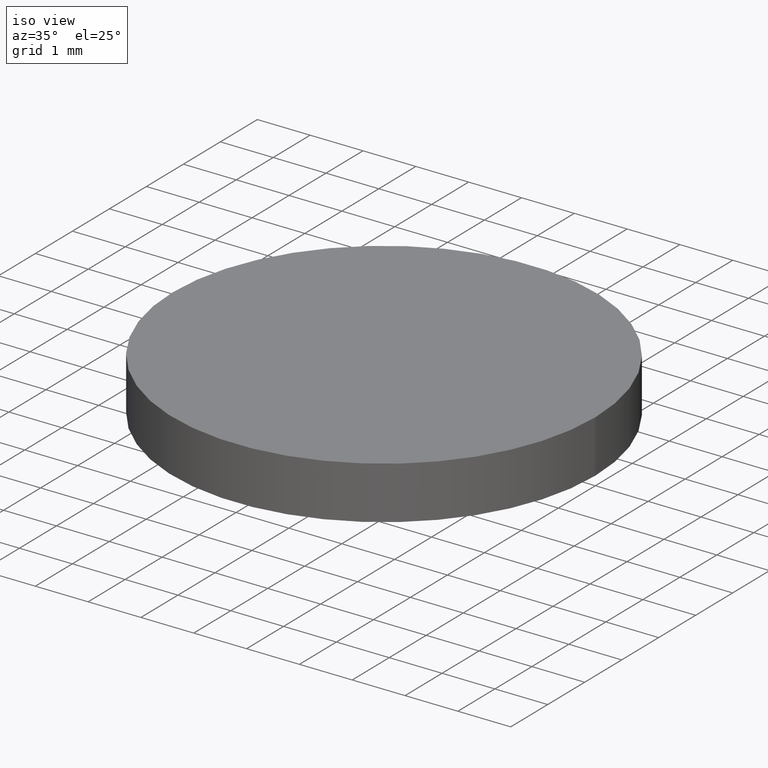
[diagram: clean part render]
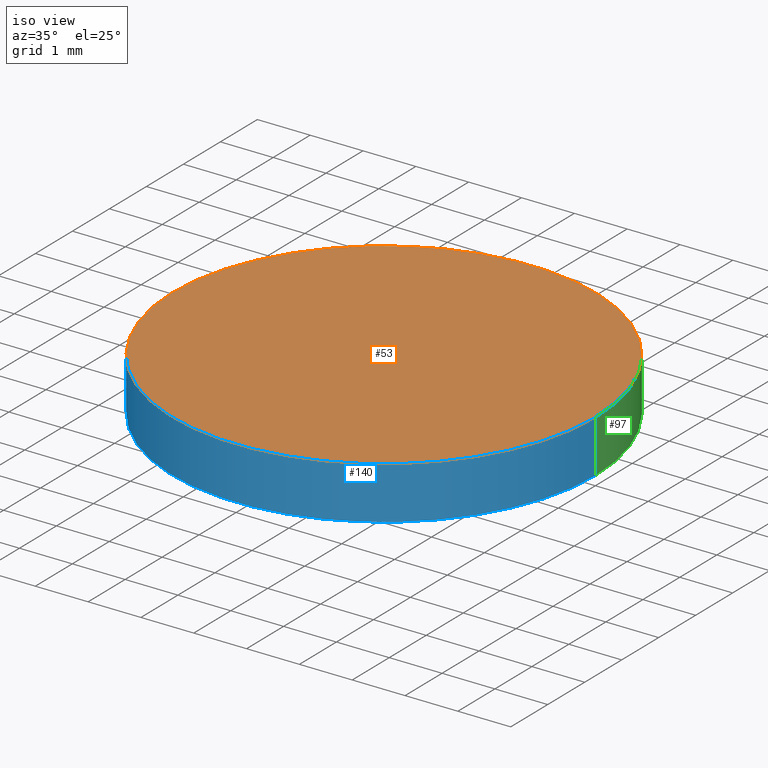
[diagram: same view with three faces highlighted in distinct colors, each labeled with its STEP entity id]
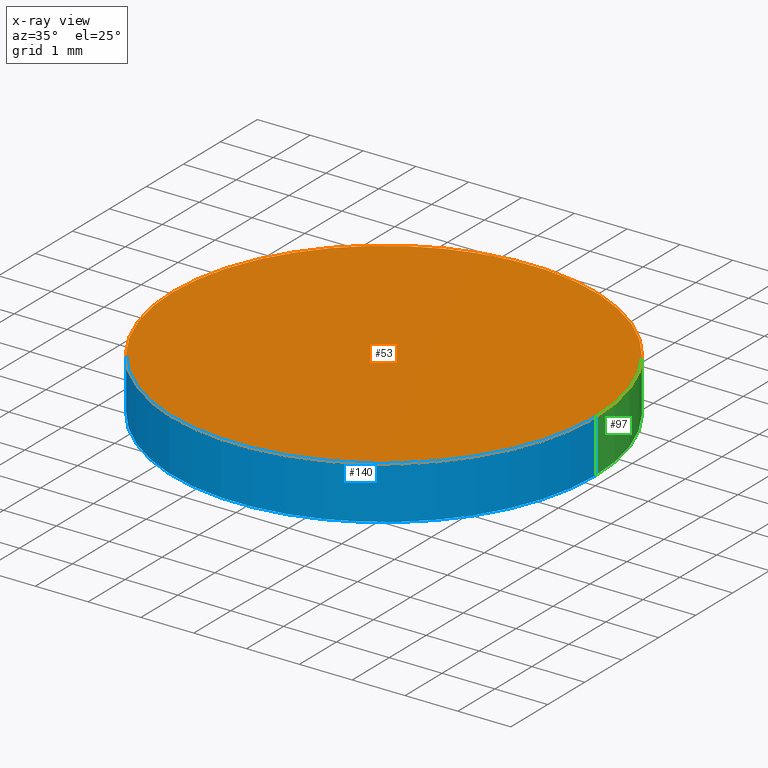
[diagram: x-ray of the same camera — body ghosted, the three highlighted faces saturated]
A machine part, iso view with three faces highlighted in distinct colors.
The next image is the same camera in x-ray (body ghosted, the three faces saturated) — at least one of them is partly hidden behind the body in this view.
Their STEP definitions:

[orange] entity #53 — the highlighted planar face has unit normal (0, 0, 1).
#1 = CARTESIAN_POINT ( 'NONE',  ( -4.000000000000000000, 0.0000000000000000000, 1.000000000000000000 ) ) ;
#7 = DIRECTION ( 'NONE',  ( 0.0000000000000000000, 0.0000000000000000000, 1.000000000000000000 ) ) ;
#23 = CARTESIAN_POINT ( 'NONE',  ( 0.0000000000000000000, 0.0000000000000000000, 1.000000000000000000 ) ) ;
#25 = FACE_OUTER_BOUND ( 'NONE', #121, .T. ) ;
#27 = DIRECTION ( 'NONE',  ( 1.000000000000000000, 0.0000000000000000000, 0.0000000000000000000 ) ) ;
#33 = CARTESIAN_POINT ( 'NONE',  ( 0.0000000000000000000, 0.0000000000000000000, 1.000000000000000000 ) ) ;
#37 = PLANE ( 'NONE',  #66 ) ;
#50 = DIRECTION ( 'NONE',  ( 1.000000000000000000, 0.0000000000000000000, 0.0000000000000000000 ) ) ;
#52 = DIRECTION ( 'NONE',  ( 0.0000000000000000000, 0.0000000000000000000, 1.000000000000000000 ) ) ;
#53 = ADVANCED_FACE ( 'NONE', ( #25 ), #37, .T. ) ;
#55 = AXIS2_PLACEMENT_3D ( 'NONE', #23, #7, #27 ) ;
#57 = EDGE_CURVE ( 'NONE', #83, #111, #94, .T. ) ;
#66 = AXIS2_PLACEMENT_3D ( 'NONE', #79, #69, #104 ) ;
#69 = DIRECTION ( 'NONE',  ( 0.0000000000000000000, 0.0000000000000000000, 1.000000000000000000 ) ) ;
#74 = ORIENTED_EDGE ( 'NONE', *, *, #57, .T. ) ;
#75 = CIRCLE ( 'NONE', #85, 4.000000000000000000 ) ;
#79 = CARTESIAN_POINT ( 'NONE',  ( 0.0000000000000000000, 0.0000000000000000000, 1.000000000000000000 ) ) ;
#83 = VERTEX_POINT ( 'NONE', #1 ) ;
#85 = AXIS2_PLACEMENT_3D ( 'NONE', #33, #52, #50 ) ;
#86 = EDGE_CURVE ( 'NONE', #111, #83, #75, .T. ) ;
#94 = CIRCLE ( 'NONE', #55, 4.000000000000000000 ) ;
#96 = CARTESIAN_POINT ( 'NONE',  ( 4.000000000000000000, 4.898587196589412800E-016, 1.000000000000000000 ) ) ;
#104 = DIRECTION ( 'NONE',  ( 1.000000000000000000, 0.0000000000000000000, -0.0000000000000000000 ) ) ;
#108 = ORIENTED_EDGE ( 'NONE', *, *, #86, .T. ) ;
#111 = VERTEX_POINT ( 'NONE', #96 ) ;
#121 = EDGE_LOOP ( 'NONE', ( #74, #108 ) ) ;

[blue] entity #140 — the highlighted cylindrical surface (partial cylindrical patch) has radius 4 mm, axis along (-0, -0, -1).
#1 = CARTESIAN_POINT ( 'NONE',  ( -4.000000000000000000, 0.0000000000000000000, 1.000000000000000000 ) ) ;
#4 = AXIS2_PLACEMENT_3D ( 'NONE', #89, #22, #135 ) ;
#5 = LINE ( 'NONE', #77, #12 ) ;
#7 = DIRECTION ( 'NONE',  ( 0.0000000000000000000, 0.0000000000000000000, 1.000000000000000000 ) ) ;
#10 = VECTOR ( 'NONE', #49, 1000.000000000000000 ) ;
#12 = VECTOR ( 'NONE', #120, 1000.000000000000000 ) ;
#14 = ORIENTED_EDGE ( 'NONE', *, *, #57, .F. ) ;
#16 = VERTEX_POINT ( 'NONE', #112 ) ;
#22 = DIRECTION ( 'NONE',  ( -0.0000000000000000000, -0.0000000000000000000, -1.000000000000000000 ) ) ;
#23 = CARTESIAN_POINT ( 'NONE',  ( 0.0000000000000000000, 0.0000000000000000000, 1.000000000000000000 ) ) ;
#27 = DIRECTION ( 'NONE',  ( 1.000000000000000000, 0.0000000000000000000, 0.0000000000000000000 ) ) ;
#35 = EDGE_LOOP ( 'NONE', ( #138, #14, #70, #38 ) ) ;
#38 = ORIENTED_EDGE ( 'NONE', *, *, #92, .T. ) ;
#39 = VERTEX_POINT ( 'NONE', #116 ) ;
#47 = DIRECTION ( 'NONE',  ( 1.000000000000000000, 0.0000000000000000000, 0.0000000000000000000 ) ) ;
#48 = EDGE_CURVE ( 'NONE', #111, #39, #5, .T. ) ;
#49 = DIRECTION ( 'NONE',  ( -0.0000000000000000000, -0.0000000000000000000, -1.000000000000000000 ) ) ;
#55 = AXIS2_PLACEMENT_3D ( 'NONE', #23, #7, #27 ) ;
#57 = EDGE_CURVE ( 'NONE', #83, #111, #94, .T. ) ;
#62 = CARTESIAN_POINT ( 'NONE',  ( -4.000000000000000000, 0.0000000000000000000, 1.000000000000000000 ) ) ;
#63 = CIRCLE ( 'NONE', #90, 4.000000000000000000 ) ;
#68 = DIRECTION ( 'NONE',  ( 0.0000000000000000000, 0.0000000000000000000, 1.000000000000000000 ) ) ;
#70 = ORIENTED_EDGE ( 'NONE', *, *, #71, .T. ) ;
#71 = EDGE_CURVE ( 'NONE', #83, #16, #113, .T. ) ;
#77 = CARTESIAN_POINT ( 'NONE',  ( 4.000000000000000000, 4.898587196589412800E-016, 1.000000000000000000 ) ) ;
#83 = VERTEX_POINT ( 'NONE', #1 ) ;
#84 = FACE_OUTER_BOUND ( 'NONE', #35, .T. ) ;
#89 = CARTESIAN_POINT ( 'NONE',  ( 0.0000000000000000000, 0.0000000000000000000, 1.000000000000000000 ) ) ;
#90 = AXIS2_PLACEMENT_3D ( 'NONE', #98, #68, #47 ) ;
#92 = EDGE_CURVE ( 'NONE', #16, #39, #63, .T. ) ;
#94 = CIRCLE ( 'NONE', #55, 4.000000000000000000 ) ;
#96 = CARTESIAN_POINT ( 'NONE',  ( 4.000000000000000000, 4.898587196589412800E-016, 1.000000000000000000 ) ) ;
#98 = CARTESIAN_POINT ( 'NONE',  ( 0.0000000000000000000, 0.0000000000000000000, 0.0000000000000000000 ) ) ;
#102 = CYLINDRICAL_SURFACE ( 'NONE', #4, 4.000000000000000000 ) ;
#111 = VERTEX_POINT ( 'NONE', #96 ) ;
#112 = CARTESIAN_POINT ( 'NONE',  ( -4.000000000000000000, 0.0000000000000000000, 0.0000000000000000000 ) ) ;
#113 = LINE ( 'NONE', #62, #10 ) ;
#116 = CARTESIAN_POINT ( 'NONE',  ( 4.000000000000000000, 4.898587196589412800E-016, 0.0000000000000000000 ) ) ;
#120 = DIRECTION ( 'NONE',  ( -0.0000000000000000000, -0.0000000000000000000, -1.000000000000000000 ) ) ;
#135 = DIRECTION ( 'NONE',  ( -1.000000000000000000, 0.0000000000000000000, 0.0000000000000000000 ) ) ;
#138 = ORIENTED_EDGE ( 'NONE', *, *, #48, .F. ) ;
#140 = ADVANCED_FACE ( 'NONE', ( #84 ), #102, .T. ) ;

[green] entity #97 — the highlighted cylindrical surface (partial cylindrical patch) has radius 4 mm, axis along (-0, -0, -1).
#1 = CARTESIAN_POINT ( 'NONE',  ( -4.000000000000000000, 0.0000000000000000000, 1.000000000000000000 ) ) ;
#2 = CYLINDRICAL_SURFACE ( 'NONE', #106, 4.000000000000000000 ) ;
#3 = ORIENTED_EDGE ( 'NONE', *, *, #48, .T. ) ;
#5 = LINE ( 'NONE', #77, #12 ) ;
#9 = DIRECTION ( 'NONE',  ( 0.0000000000000000000, 0.0000000000000000000, 1.000000000000000000 ) ) ;
#10 = VECTOR ( 'NONE', #49, 1000.000000000000000 ) ;
#11 = CARTESIAN_POINT ( 'NONE',  ( 0.0000000000000000000, 0.0000000000000000000, 0.0000000000000000000 ) ) ;
#12 = VECTOR ( 'NONE', #120, 1000.000000000000000 ) ;
#16 = VERTEX_POINT ( 'NONE', #112 ) ;
#17 = DIRECTION ( 'NONE',  ( -1.000000000000000000, 0.0000000000000000000, 0.0000000000000000000 ) ) ;
#21 = DIRECTION ( 'NONE',  ( -0.0000000000000000000, -0.0000000000000000000, -1.000000000000000000 ) ) ;
#33 = CARTESIAN_POINT ( 'NONE',  ( 0.0000000000000000000, 0.0000000000000000000, 1.000000000000000000 ) ) ;
#36 = ORIENTED_EDGE ( 'NONE', *, *, #86, .F. ) ;
#39 = VERTEX_POINT ( 'NONE', #116 ) ;
#48 = EDGE_CURVE ( 'NONE', #111, #39, #5, .T. ) ;
#49 = DIRECTION ( 'NONE',  ( -0.0000000000000000000, -0.0000000000000000000, -1.000000000000000000 ) ) ;
#50 = DIRECTION ( 'NONE',  ( 1.000000000000000000, 0.0000000000000000000, 0.0000000000000000000 ) ) ;
#52 = DIRECTION ( 'NONE',  ( 0.0000000000000000000, 0.0000000000000000000, 1.000000000000000000 ) ) ;
#56 = ORIENTED_EDGE ( 'NONE', *, *, #71, .F. ) ;
#62 = CARTESIAN_POINT ( 'NONE',  ( -4.000000000000000000, 0.0000000000000000000, 1.000000000000000000 ) ) ;
#71 = EDGE_CURVE ( 'NONE', #83, #16, #113, .T. ) ;
#75 = CIRCLE ( 'NONE', #85, 4.000000000000000000 ) ;
#77 = CARTESIAN_POINT ( 'NONE',  ( 4.000000000000000000, 4.898587196589412800E-016, 1.000000000000000000 ) ) ;
#78 = AXIS2_PLACEMENT_3D ( 'NONE', #11, #9, #87 ) ;
#80 = CARTESIAN_POINT ( 'NONE',  ( 0.0000000000000000000, 0.0000000000000000000, 1.000000000000000000 ) ) ;
#81 = EDGE_CURVE ( 'NONE', #39, #16, #99, .T. ) ;
#83 = VERTEX_POINT ( 'NONE', #1 ) ;
#85 = AXIS2_PLACEMENT_3D ( 'NONE', #33, #52, #50 ) ;
#86 = EDGE_CURVE ( 'NONE', #111, #83, #75, .T. ) ;
#87 = DIRECTION ( 'NONE',  ( 1.000000000000000000, 0.0000000000000000000, 0.0000000000000000000 ) ) ;
#91 = EDGE_LOOP ( 'NONE', ( #36, #3, #128, #56 ) ) ;
#96 = CARTESIAN_POINT ( 'NONE',  ( 4.000000000000000000, 4.898587196589412800E-016, 1.000000000000000000 ) ) ;
#97 = ADVANCED_FACE ( 'NONE', ( #117 ), #2, .T. ) ;
#99 = CIRCLE ( 'NONE', #78, 4.000000000000000000 ) ;
#106 = AXIS2_PLACEMENT_3D ( 'NONE', #80, #21, #17 ) ;
#111 = VERTEX_POINT ( 'NONE', #96 ) ;
#112 = CARTESIAN_POINT ( 'NONE',  ( -4.000000000000000000, 0.0000000000000000000, 0.0000000000000000000 ) ) ;
#113 = LINE ( 'NONE', #62, #10 ) ;
#116 = CARTESIAN_POINT ( 'NONE',  ( 4.000000000000000000, 4.898587196589412800E-016, 0.0000000000000000000 ) ) ;
#117 = FACE_OUTER_BOUND ( 'NONE', #91, .T. ) ;
#120 = DIRECTION ( 'NONE',  ( -0.0000000000000000000, -0.0000000000000000000, -1.000000000000000000 ) ) ;
#128 = ORIENTED_EDGE ( 'NONE', *, *, #81, .T. ) ;